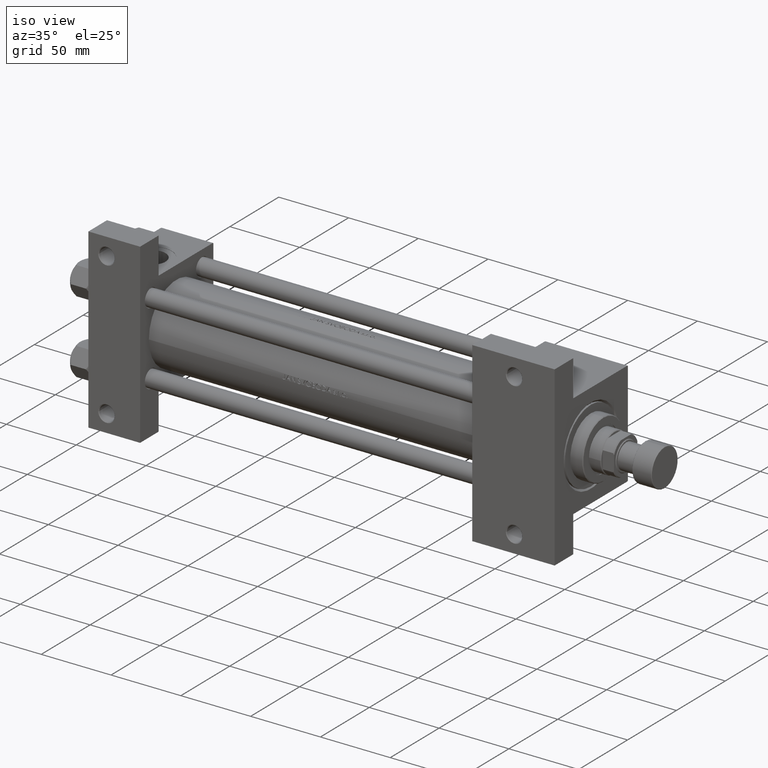
[diagram: clean part render]
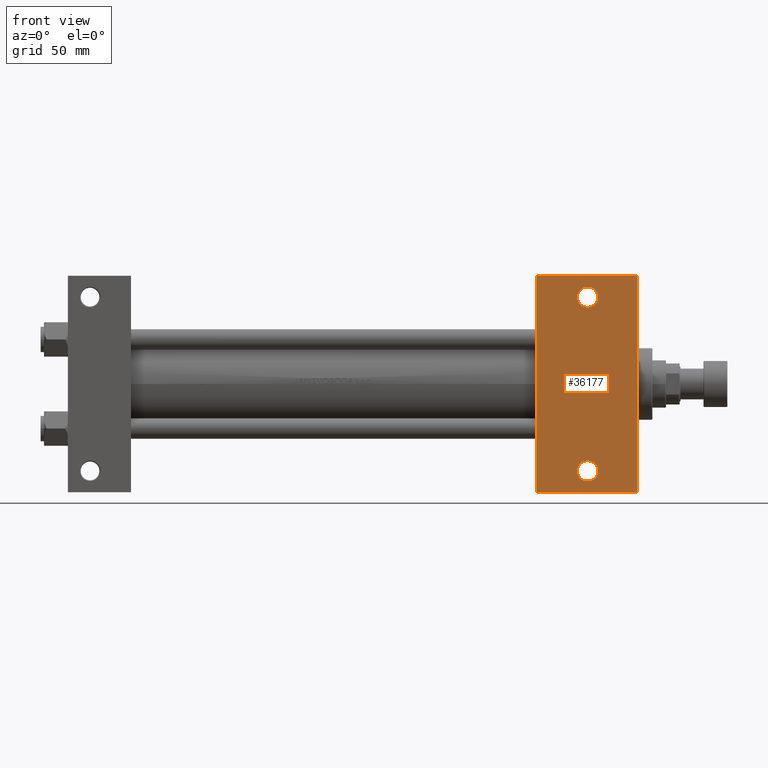
[diagram: tour spotlight — one face highlighted and labeled with its STEP entity id]
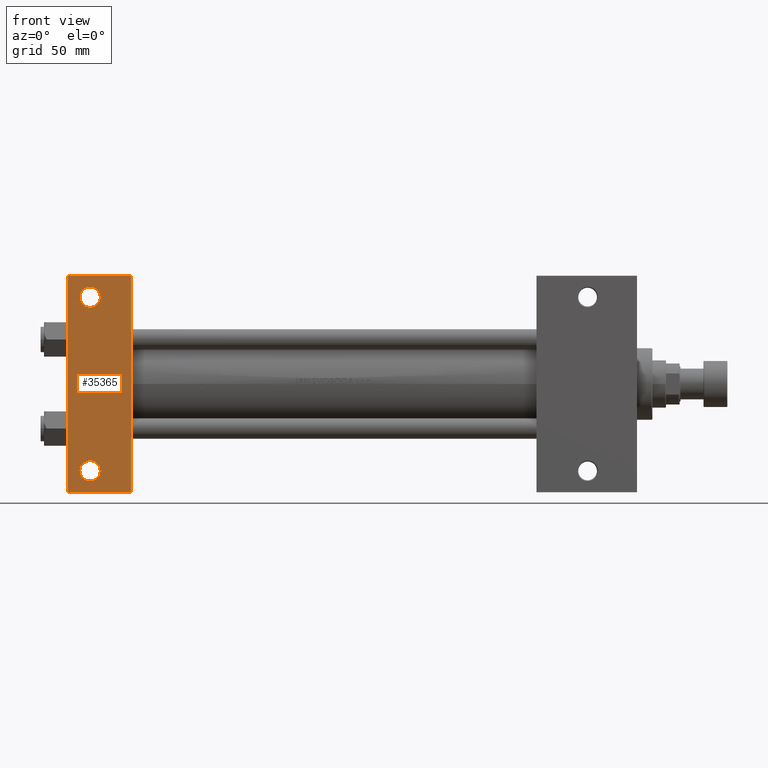
[diagram: tour spotlight — one face highlighted and labeled with its STEP entity id]
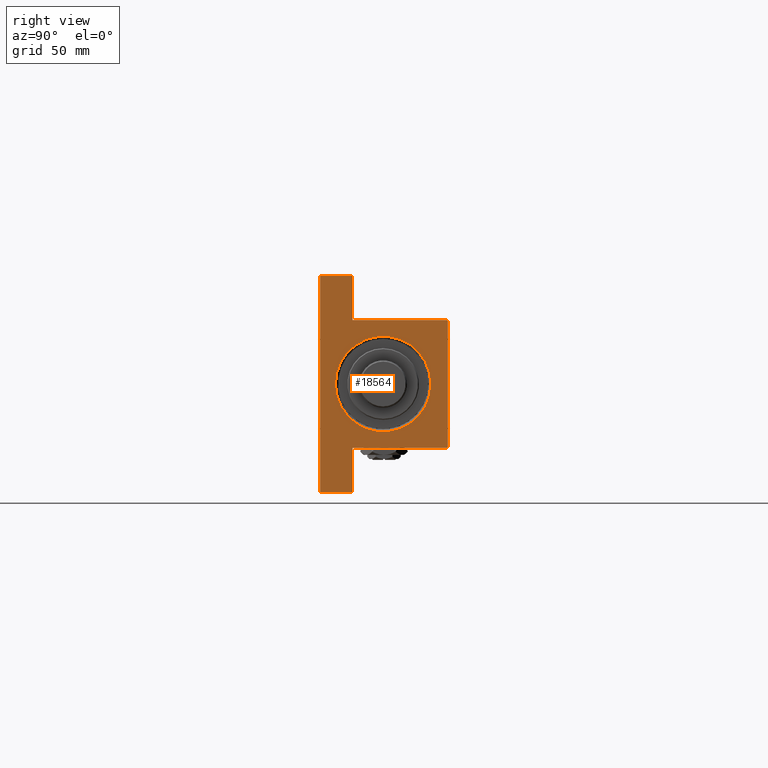
[diagram: tour spotlight — one face highlighted and labeled with its STEP entity id]
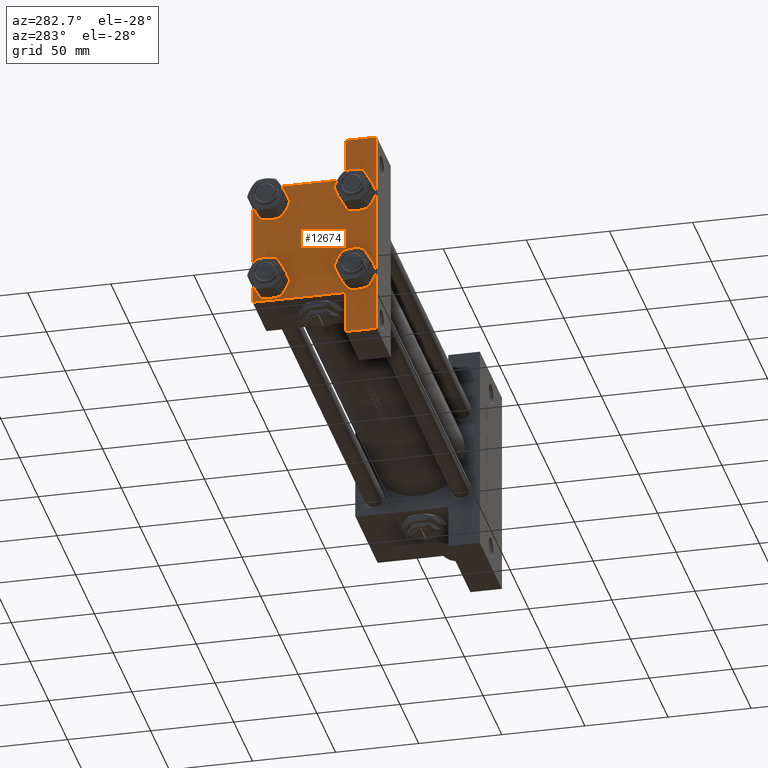
[diagram: tour spotlight — one face highlighted and labeled with its STEP entity id]
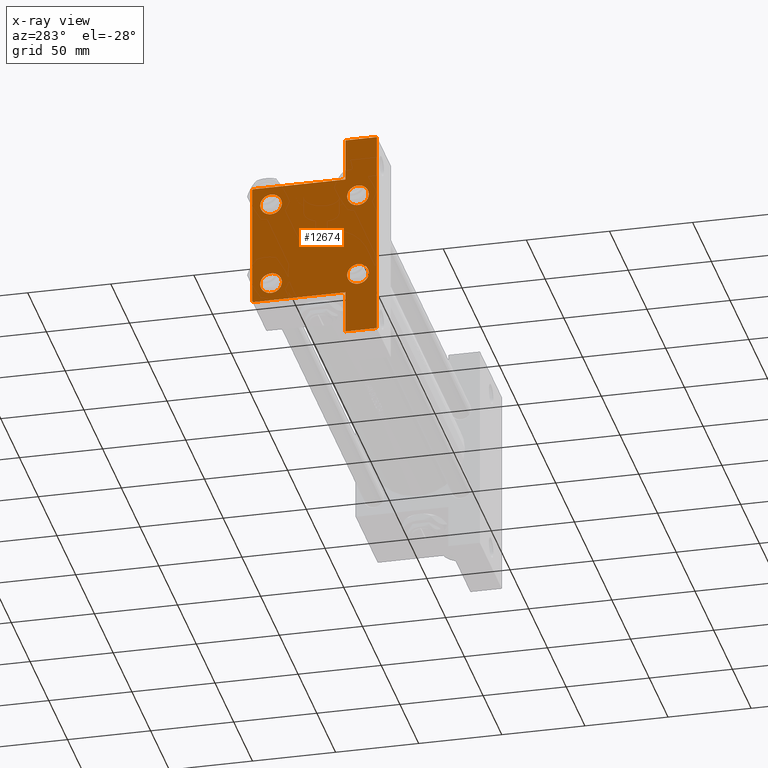
[diagram: x-ray of the same camera — body ghosted, this tour face saturated]
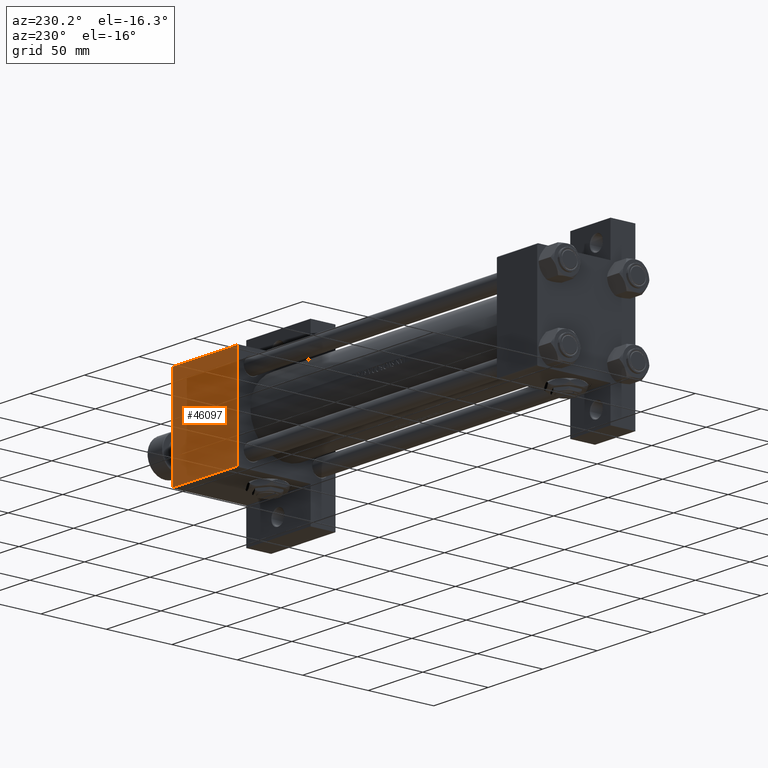
[diagram: tour spotlight — one face highlighted and labeled with its STEP entity id]
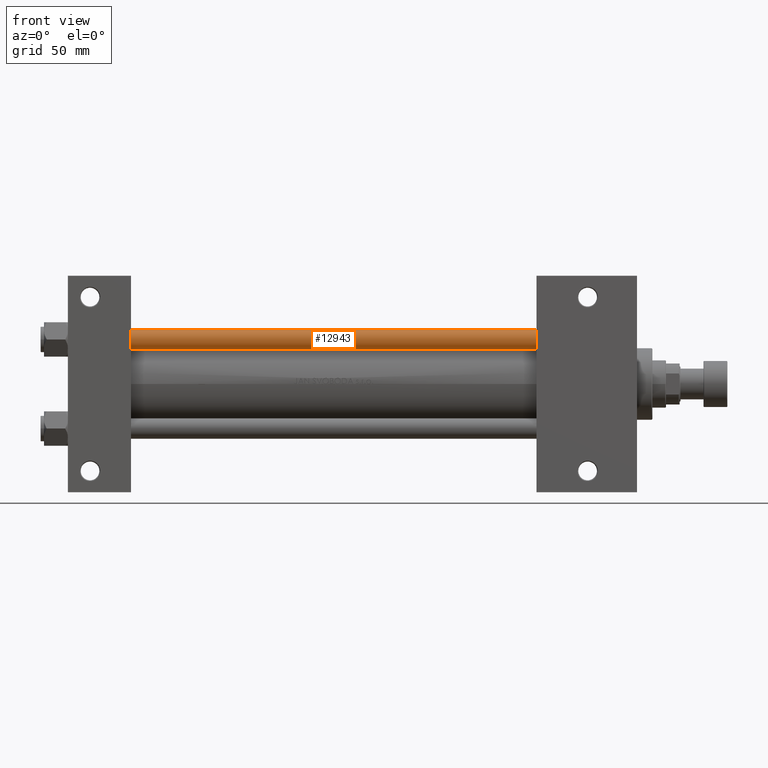
[diagram: tour spotlight — one face highlighted and labeled with its STEP entity id]
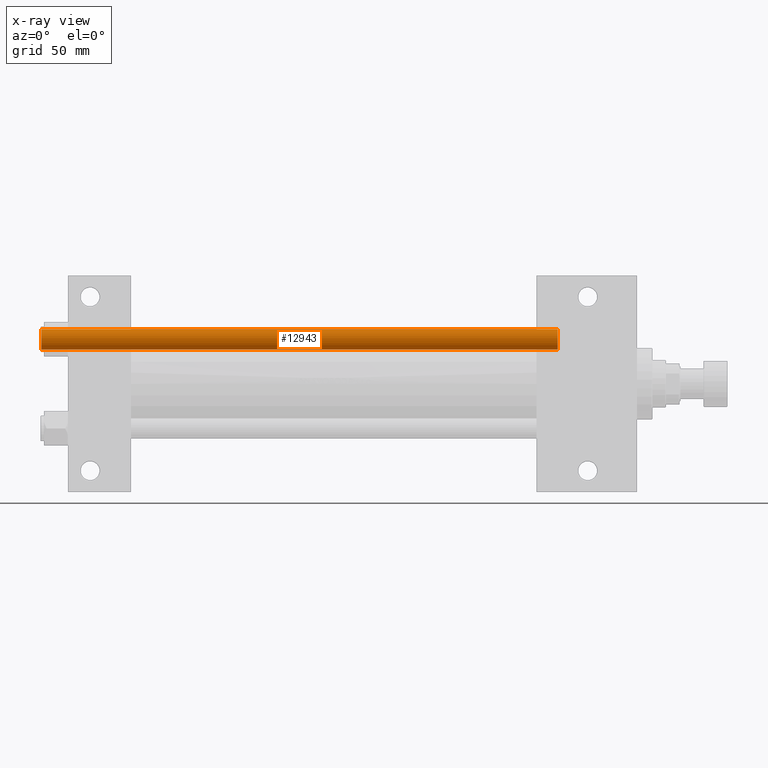
[diagram: x-ray of the same camera — body ghosted, this tour face saturated]
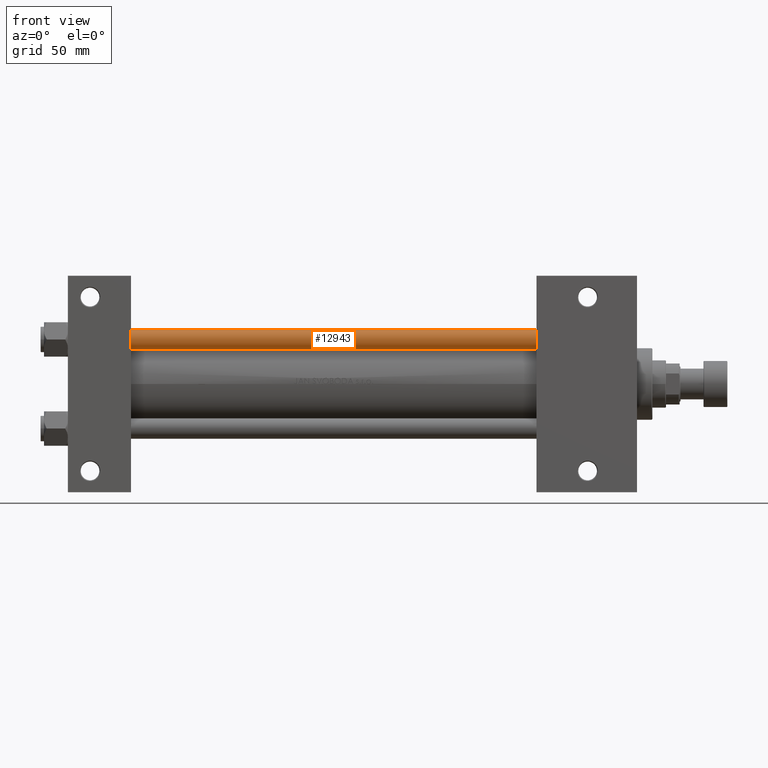
[diagram: tour spotlight — one face highlighted and labeled with its STEP entity id]
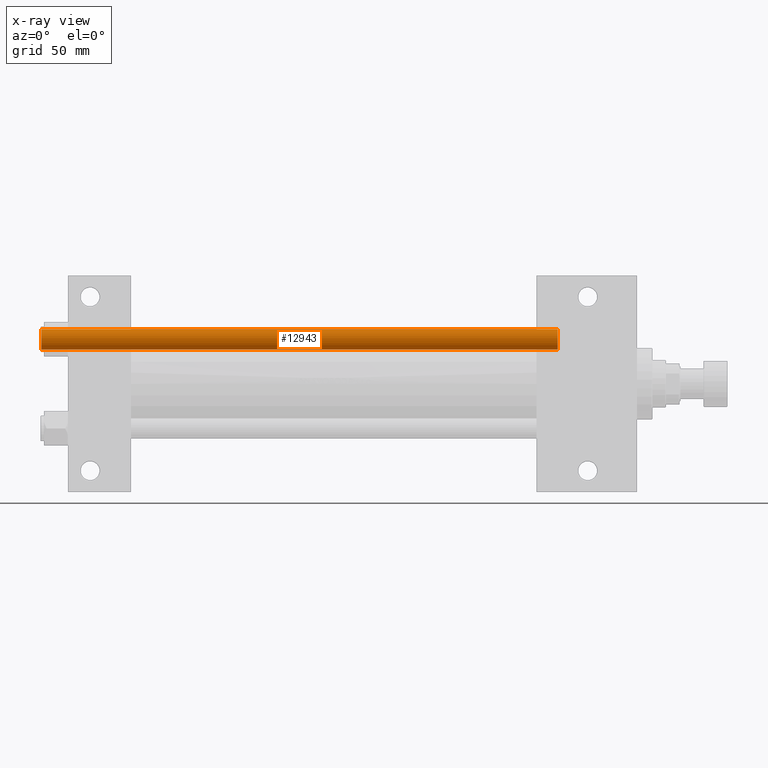
[diagram: x-ray of the same camera — body ghosted, this tour face saturated]
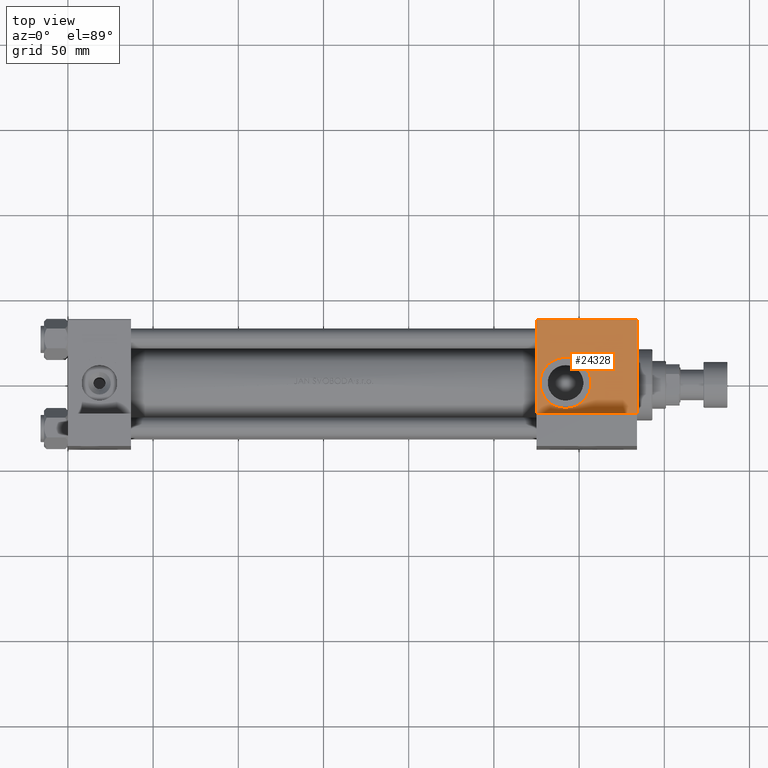
[diagram: tour spotlight — one face highlighted and labeled with its STEP entity id]
A machine part: a face-by-face anatomy tour. The part has 1197 B-rep faces; the first image is the clean iso view, then the 8 largest visible faces are spotlighted one at a time (largest first), each with its STEP entity span.

Face 1 — front view, entity #36177. In plain terms, the highlighted planar face has unit normal (0, -1, 0).
Definition (entity closure, byte-faithful):
#670 = CARTESIAN_POINT ( 'NONE',  ( 274.9999999999999432, 37.50000000000000000, -37.50000000000000000 ) ) ;
#691 = EDGE_CURVE ( 'NONE', #42571, #6692, #42683, .T. ) ;
#1751 = DIRECTION ( 'NONE',  ( -1.000000000000000000, 0.000000000000000000, 0.000000000000000000 ) ) ;
#2688 = EDGE_LOOP ( 'NONE', ( #12693, #31469, #23278, #48352 ) ) ;
#5316 = AXIS2_PLACEMENT_3D ( 'NONE', #49743, #15086, #23698 ) ;
#6692 = VERTEX_POINT ( 'NONE', #42587 ) ;
#7310 = EDGE_LOOP ( 'NONE', ( #9851, #15770 ) ) ;
#8898 = CARTESIAN_POINT ( 'NONE',  ( 274.9999999999999432, 63.49999999999997158, -37.50000000000000000 ) ) ;
#9370 = CIRCLE ( 'NONE', #36055, 5.999500000000046462 ) ;
#9448 = VERTEX_POINT ( 'NONE', #36521 ) ;
#9601 = PLANE ( 'NONE',  #21250 ) ;
#9733 = VERTEX_POINT ( 'NONE', #30938 ) ;
#9851 = ORIENTED_EDGE ( 'NONE', *, *, #12911, .T. ) ;
#10835 = CARTESIAN_POINT ( 'NONE',  ( 310.9995000000000118, 51.00000000000000711, -37.50000000000000000 ) ) ;
#12693 = ORIENTED_EDGE ( 'NONE', *, *, #17866, .F. ) ;
#12911 = EDGE_CURVE ( 'NONE', #29142, #9733, #33589, .T. ) ;
#13100 = CIRCLE ( 'NONE', #41380, 5.999500000000046462 ) ;
#13875 = CARTESIAN_POINT ( 'NONE',  ( 305.0000000000000000, -51.00000000000000000, -37.50000000000000000 ) ) ;
#15086 = DIRECTION ( 'NONE',  ( -0.000000000000000000, -0.000000000000000000, 1.000000000000000000 ) ) ;
#15115 = CARTESIAN_POINT ( 'NONE',  ( 333.9999999999999432, 37.50000000000000000, -37.50000000000000000 ) ) ;
#15770 = ORIENTED_EDGE ( 'NONE', *, *, #40230, .T. ) ;
#16110 = DIRECTION ( 'NONE',  ( 0.000000000000000000, -1.000000000000000000, 0.000000000000000000 ) ) ;
#16860 = VECTOR ( 'NONE', #16110, 1000.000000000000000 ) ;
#17214 = DIRECTION ( 'NONE',  ( 0.000000000000000000, 0.000000000000000000, -1.000000000000000000 ) ) ;
#17738 = ORIENTED_EDGE ( 'NONE', *, *, #38171, .T. ) ;
#17866 = EDGE_CURVE ( 'NONE', #9448, #46558, #39130, .T. ) ;
#17954 = FACE_BOUND ( 'NONE', #28041, .T. ) ;
#21250 = AXIS2_PLACEMENT_3D ( 'NONE', #25070, #17214, #48314 ) ;
#22353 = DIRECTION ( 'NONE',  ( -1.000000000000000000, 0.000000000000000000, 0.000000000000000000 ) ) ;
#23278 = ORIENTED_EDGE ( 'NONE', *, *, #691, .T. ) ;
#23698 = DIRECTION ( 'NONE',  ( -1.000000000000000000, 0.000000000000000000, 0.000000000000000000 ) ) ;
#25070 = CARTESIAN_POINT ( 'NONE',  ( 333.9999999999999432, 37.50000000000000000, -37.50000000000000000 ) ) ;
#25484 = DIRECTION ( 'NONE',  ( -0.000000000000000000, -0.000000000000000000, 1.000000000000000000 ) ) ;
#25575 = CARTESIAN_POINT ( 'NONE',  ( 299.0004999999998745, 51.00000000000000711, -37.50000000000000000 ) ) ;
#28007 = DIRECTION ( 'NONE',  ( -1.000000000000000000, -0.000000000000000000, -0.000000000000000000 ) ) ;
#28041 = EDGE_LOOP ( 'NONE', ( #17738, #34699 ) ) ;
#29142 = VERTEX_POINT ( 'NONE', #49316 ) ;
#29336 = DIRECTION ( 'NONE',  ( -0.000000000000000000, -0.000000000000000000, 1.000000000000000000 ) ) ;
#30938 = CARTESIAN_POINT ( 'NONE',  ( 310.9995000000000118, -51.00000000000000000, -37.50000000000000000 ) ) ;
#31335 = EDGE_CURVE ( 'NONE', #37944, #46469, #13100, .T. ) ;
#31469 = ORIENTED_EDGE ( 'NONE', *, *, #43875, .T. ) ;
#32527 = CARTESIAN_POINT ( 'NONE',  ( 274.9999999999999432, -63.50000000000002842, -37.50000000000000000 ) ) ;
#32655 = AXIS2_PLACEMENT_3D ( 'NONE', #49939, #25484, #41156 ) ;
#33589 = CIRCLE ( 'NONE', #5316, 5.999500000000046462 ) ;
#34699 = ORIENTED_EDGE ( 'NONE', *, *, #31335, .T. ) ;
#35530 = EDGE_CURVE ( 'NONE', #6692, #46558, #47198, .T. ) ;
#36055 = AXIS2_PLACEMENT_3D ( 'NONE', #13875, #29336, #1751 ) ;
#36177 = ADVANCED_FACE ( 'NONE', ( #17954, #44527, #48801 ), #9601, .T. ) ;
#36521 = CARTESIAN_POINT ( 'NONE',  ( 274.9999999999999432, 63.49999999999997158, -37.50000000000000000 ) ) ;
#37944 = VERTEX_POINT ( 'NONE', #10835 ) ;
#38168 = VECTOR ( 'NONE', #46470, 1000.000000000000000 ) ;
#38171 = EDGE_CURVE ( 'NONE', #46469, #37944, #44736, .T. ) ;
#39130 = LINE ( 'NONE', #670, #16860 ) ;
#39534 = LINE ( 'NONE', #8898, #44236 ) ;
#40230 = EDGE_CURVE ( 'NONE', #9733, #29142, #9370, .T. ) ;
#41156 = DIRECTION ( 'NONE',  ( -1.000000000000000000, 0.000000000000000000, 0.000000000000000000 ) ) ;
#41380 = AXIS2_PLACEMENT_3D ( 'NONE', #45371, #45621, #22353 ) ;
#42571 = VERTEX_POINT ( 'NONE', #47663 ) ;
#42587 = CARTESIAN_POINT ( 'NONE',  ( 333.9999999999999432, -63.50000000000002842, -37.50000000000000000 ) ) ;
#42683 = LINE ( 'NONE', #15115, #38168 ) ;
#43018 = VECTOR ( 'NONE', #28007, 1000.000000000000000 ) ;
#43875 = EDGE_CURVE ( 'NONE', #9448, #42571, #39534, .T. ) ;
#44236 = VECTOR ( 'NONE', #47112, 1000.000000000000000 ) ;
#44527 = FACE_BOUND ( 'NONE', #7310, .T. ) ;
#44736 = CIRCLE ( 'NONE', #32655, 5.999500000000046462 ) ;
#45371 = CARTESIAN_POINT ( 'NONE',  ( 304.9999999999999432, 51.00000000000000711, -37.50000000000000000 ) ) ;
#45621 = DIRECTION ( 'NONE',  ( -0.000000000000000000, -0.000000000000000000, 1.000000000000000000 ) ) ;
#46469 = VERTEX_POINT ( 'NONE', #25575 ) ;
#46470 = DIRECTION ( 'NONE',  ( 0.000000000000000000, -1.000000000000000000, 0.000000000000000000 ) ) ;
#46558 = VERTEX_POINT ( 'NONE', #47596 ) ;
#47112 = DIRECTION ( 'NONE',  ( 1.000000000000000000, 0.000000000000000000, 0.000000000000000000 ) ) ;
#47198 = LINE ( 'NONE', #32527, #43018 ) ;
#47596 = CARTESIAN_POINT ( 'NONE',  ( 274.9999999999999432, -63.50000000000002842, -37.50000000000000000 ) ) ;
#47663 = CARTESIAN_POINT ( 'NONE',  ( 333.9999999999999432, 63.49999999999997158, -37.50000000000000000 ) ) ;
#48314 = DIRECTION ( 'NONE',  ( -1.000000000000000000, 0.000000000000000000, -0.000000000000000000 ) ) ;
#48352 = ORIENTED_EDGE ( 'NONE', *, *, #35530, .T. ) ;
#48801 = FACE_OUTER_BOUND ( 'NONE', #2688, .T. ) ;
#49316 = CARTESIAN_POINT ( 'NONE',  ( 299.0004999999999313, -51.00000000000000000, -37.50000000000000000 ) ) ;
#49743 = CARTESIAN_POINT ( 'NONE',  ( 305.0000000000000000, -51.00000000000000000, -37.50000000000000000 ) ) ;
#49939 = CARTESIAN_POINT ( 'NONE',  ( 304.9999999999999432, 51.00000000000000711, -37.50000000000000000 ) ) ;

Face 2 — front view, entity #35365. In plain terms, the highlighted planar face has unit normal (0, -1, -0).
Definition (entity closure, byte-faithful):
#679 = CARTESIAN_POINT ( 'NONE',  ( 12.99999999999999822, -51.00000000000003553, -37.50000000000000711 ) ) ;
#929 = EDGE_CURVE ( 'NONE', #26586, #8829, #39024, .T. ) ;
#954 = DIRECTION ( 'NONE',  ( 1.000000000000000000, 0.000000000000000000, 0.000000000000000000 ) ) ;
#1362 = VERTEX_POINT ( 'NONE', #31124 ) ;
#1421 = AXIS2_PLACEMENT_3D ( 'NONE', #1849, #5389, #16795 ) ;
#1849 = CARTESIAN_POINT ( 'NONE',  ( 12.99999999999999822, 50.99999999999995737, -37.50000000000000000 ) ) ;
#1883 = DIRECTION ( 'NONE',  ( -0.000000000000000000, -9.251858538542972814E-17, 1.000000000000000000 ) ) ;
#2256 = DIRECTION ( 'NONE',  ( 0.000000000000000000, 1.000000000000000000, 9.251858538542972814E-17 ) ) ;
#2535 = DIRECTION ( 'NONE',  ( 0.000000000000000000, 1.000000000000000000, 0.000000000000000000 ) ) ;
#3489 = EDGE_CURVE ( 'NONE', #1362, #38982, #8527, .T. ) ;
#4017 = EDGE_CURVE ( 'NONE', #19695, #19867, #43936, .T. ) ;
#4135 = EDGE_CURVE ( 'NONE', #38982, #6154, #45130, .T. ) ;
#5389 = DIRECTION ( 'NONE',  ( -0.000000000000000000, -9.251858538542972814E-17, 1.000000000000000000 ) ) ;
#6154 = VERTEX_POINT ( 'NONE', #27796 ) ;
#6375 = CARTESIAN_POINT ( 'NONE',  ( 7.000500000000006828, 50.99999999999995737, -37.50000000000000000 ) ) ;
#6879 = DIRECTION ( 'NONE',  ( 0.000000000000000000, 1.000000000000000000, 0.000000000000000000 ) ) ;
#7173 = CARTESIAN_POINT ( 'NONE',  ( 37.00000000000000000, 37.49999999999999289, -37.50000000000000000 ) ) ;
#8527 = LINE ( 'NONE', #43201, #26180 ) ;
#8829 = VERTEX_POINT ( 'NONE', #25290 ) ;
#9215 = DIRECTION ( 'NONE',  ( 0.000000000000000000, -1.000000000000000000, -9.251858538542972814E-17 ) ) ;
#10269 = VECTOR ( 'NONE', #15076, 1000.000000000000000 ) ;
#10796 = ORIENTED_EDGE ( 'NONE', *, *, #15826, .T. ) ;
#10888 = ORIENTED_EDGE ( 'NONE', *, *, #43601, .T. ) ;
#11391 = EDGE_LOOP ( 'NONE', ( #26405, #40780 ) ) ;
#11600 = CARTESIAN_POINT ( 'NONE',  ( 37.00000000000001421, 63.50000000000000000, -37.50000000000002132 ) ) ;
#12274 = LINE ( 'NONE', #36318, #35765 ) ;
#12985 = AXIS2_PLACEMENT_3D ( 'NONE', #13679, #29139, #2535 ) ;
#13644 = PLANE ( 'NONE',  #34138 ) ;
#13679 = CARTESIAN_POINT ( 'NONE',  ( 12.99999999999999822, -51.00000000000003553, -37.50000000000000711 ) ) ;
#13933 = ORIENTED_EDGE ( 'NONE', *, *, #4135, .T. ) ;
#15076 = DIRECTION ( 'NONE',  ( -1.000000000000000000, -0.000000000000000000, -0.000000000000000000 ) ) ;
#15212 = EDGE_LOOP ( 'NONE', ( #35233, #29140, #13933, #10888 ) ) ;
#15826 = EDGE_CURVE ( 'NONE', #19867, #19695, #45033, .T. ) ;
#16795 = DIRECTION ( 'NONE',  ( 0.000000000000000000, 1.000000000000000000, 0.000000000000000000 ) ) ;
#17216 = AXIS2_PLACEMENT_3D ( 'NONE', #679, #31553, #6879 ) ;
#17450 = FACE_OUTER_BOUND ( 'NONE', #15212, .T. ) ;
#17662 = CARTESIAN_POINT ( 'NONE',  ( 18.99949999999998695, 50.99999999999995737, -37.50000000000000000 ) ) ;
#19695 = VERTEX_POINT ( 'NONE', #17662 ) ;
#19867 = VERTEX_POINT ( 'NONE', #6375 ) ;
#20391 = CARTESIAN_POINT ( 'NONE',  ( 12.99999999999999822, 50.99999999999995737, -37.50000000000000000 ) ) ;
#20737 = CARTESIAN_POINT ( 'NONE',  ( 18.99949999999998695, -51.00000000000003553, -37.50000000000000711 ) ) ;
#21510 = CARTESIAN_POINT ( 'NONE',  ( 3.977209754999747208E-16, -63.50000000000000000, -37.49999999999999289 ) ) ;
#22119 = DIRECTION ( 'NONE',  ( 0.000000000000000000, -1.000000000000000000, -9.251858538542972814E-17 ) ) ;
#22138 = AXIS2_PLACEMENT_3D ( 'NONE', #20391, #1883, #32270 ) ;
#24592 = VECTOR ( 'NONE', #22119, 1000.000000000000000 ) ;
#24806 = CARTESIAN_POINT ( 'NONE',  ( 37.00000000000000000, 37.49999999999999289, -37.50000000000000000 ) ) ;
#25290 = CARTESIAN_POINT ( 'NONE',  ( 7.000500000000006828, -51.00000000000003553, -37.50000000000000711 ) ) ;
#25301 = FACE_BOUND ( 'NONE', #11391, .T. ) ;
#26180 = VECTOR ( 'NONE', #954, 1000.000000000000000 ) ;
#26405 = ORIENTED_EDGE ( 'NONE', *, *, #27444, .T. ) ;
#26586 = VERTEX_POINT ( 'NONE', #20737 ) ;
#27113 = EDGE_LOOP ( 'NONE', ( #10796, #32856 ) ) ;
#27444 = EDGE_CURVE ( 'NONE', #8829, #26586, #47746, .T. ) ;
#27796 = CARTESIAN_POINT ( 'NONE',  ( 37.00000000000000000, -63.50000000000000000, -37.49999999999999289 ) ) ;
#29139 = DIRECTION ( 'NONE',  ( -0.000000000000000000, -9.251858538542972814E-17, 1.000000000000000000 ) ) ;
#29140 = ORIENTED_EDGE ( 'NONE', *, *, #3489, .T. ) ;
#31124 = CARTESIAN_POINT ( 'NONE',  ( 1.595073532467135441E-14, 63.50000000000000000, -37.50000000000002132 ) ) ;
#31553 = DIRECTION ( 'NONE',  ( -0.000000000000000000, -9.251858538542972814E-17, 1.000000000000000000 ) ) ;
#32270 = DIRECTION ( 'NONE',  ( 0.000000000000000000, 1.000000000000000000, 0.000000000000000000 ) ) ;
#32856 = ORIENTED_EDGE ( 'NONE', *, *, #4017, .T. ) ;
#34138 = AXIS2_PLACEMENT_3D ( 'NONE', #24806, #44517, #2256 ) ;
#34842 = EDGE_CURVE ( 'NONE', #1362, #38667, #12274, .T. ) ;
#35233 = ORIENTED_EDGE ( 'NONE', *, *, #34842, .F. ) ;
#35365 = ADVANCED_FACE ( 'NONE', ( #40477, #25301, #17450 ), #13644, .T. ) ;
#35765 = VECTOR ( 'NONE', #9215, 1000.000000000000000 ) ;
#36318 = CARTESIAN_POINT ( 'NONE',  ( 0.000000000000000000, 37.49999999999999289, -37.50000000000000000 ) ) ;
#38354 = LINE ( 'NONE', #49733, #10269 ) ;
#38667 = VERTEX_POINT ( 'NONE', #21510 ) ;
#38982 = VERTEX_POINT ( 'NONE', #11600 ) ;
#39024 = CIRCLE ( 'NONE', #17216, 5.999499999999990507 ) ;
#40477 = FACE_BOUND ( 'NONE', #27113, .T. ) ;
#40780 = ORIENTED_EDGE ( 'NONE', *, *, #929, .T. ) ;
#43201 = CARTESIAN_POINT ( 'NONE',  ( 1.595073532467135441E-14, 63.50000000000000000, -37.50000000000002132 ) ) ;
#43601 = EDGE_CURVE ( 'NONE', #6154, #38667, #38354, .T. ) ;
#43936 = CIRCLE ( 'NONE', #22138, 5.999499999999990507 ) ;
#44517 = DIRECTION ( 'NONE',  ( 0.000000000000000000, 9.251858538542972814E-17, -1.000000000000000000 ) ) ;
#45033 = CIRCLE ( 'NONE', #1421, 5.999499999999990507 ) ;
#45130 = LINE ( 'NONE', #7173, #24592 ) ;
#47746 = CIRCLE ( 'NONE', #12985, 5.999499999999990507 ) ;
#49733 = CARTESIAN_POINT ( 'NONE',  ( 3.977209754999747208E-16, -63.50000000000000000, -37.49999999999999289 ) ) ;

Face 3 — right view, entity #18564. In plain terms, the highlighted planar face has unit normal (-1, 0, 0).
Definition (entity closure, byte-faithful):
#691 = EDGE_CURVE ( 'NONE', #42571, #6692, #42683, .T. ) ;
#1881 = CARTESIAN_POINT ( 'NONE',  ( 333.9999999999999432, 0.000000000000000000, -28.49999999999994316 ) ) ;
#3356 = ORIENTED_EDGE ( 'NONE', *, *, #14644, .T. ) ;
#4082 = LINE ( 'NONE', #30674, #43741 ) ;
#4111 = CARTESIAN_POINT ( 'NONE',  ( 333.9999999999999432, 37.50000000000000000, 37.49999999999999289 ) ) ;
#4737 = VERTEX_POINT ( 'NONE', #31532 ) ;
#6692 = VERTEX_POINT ( 'NONE', #42587 ) ;
#6922 = ORIENTED_EDGE ( 'NONE', *, *, #691, .F. ) ;
#7046 = EDGE_LOOP ( 'NONE', ( #21842, #17823, #41822, #9142, #37264, #34986, #13179, #6922, #10522, #49582 ) ) ;
#7059 = DIRECTION ( 'NONE',  ( 0.000000000000000000, 0.000000000000000000, 1.000000000000000000 ) ) ;
#9142 = ORIENTED_EDGE ( 'NONE', *, *, #29377, .T. ) ;
#9182 = EDGE_CURVE ( 'NONE', #32684, #17941, #9546, .T. ) ;
#9241 = EDGE_CURVE ( 'NONE', #37311, #24900, #36708, .T. ) ;
#9480 = CARTESIAN_POINT ( 'NONE',  ( 333.9999999999999432, -63.50000000000002842, -18.50000000000000000 ) ) ;
#9546 = LINE ( 'NONE', #21465, #14086 ) ;
#10037 = DIRECTION ( 'NONE',  ( -0.000000000000000000, -1.000000000000000000, -0.000000000000000000 ) ) ;
#10375 = VECTOR ( 'NONE', #30201, 1000.000000000000000 ) ;
#10522 = ORIENTED_EDGE ( 'NONE', *, *, #40122, .F. ) ;
#10787 = FACE_OUTER_BOUND ( 'NONE', #7046, .T. ) ;
#11197 = LINE ( 'NONE', #45114, #10375 ) ;
#11898 = CARTESIAN_POINT ( 'NONE',  ( 333.9999999999999432, -37.50000000000000711, -18.50000000000000355 ) ) ;
#13179 = ORIENTED_EDGE ( 'NONE', *, *, #28811, .T. ) ;
#13349 = DIRECTION ( 'NONE',  ( -1.000000000000000000, -0.000000000000000000, 0.000000000000000000 ) ) ;
#13542 = EDGE_LOOP ( 'NONE', ( #47137, #3356 ) ) ;
#14086 = VECTOR ( 'NONE', #10037, 1000.000000000000000 ) ;
#14644 = EDGE_CURVE ( 'NONE', #24900, #37311, #15914, .T. ) ;
#15115 = CARTESIAN_POINT ( 'NONE',  ( 333.9999999999999432, 37.50000000000000000, -37.50000000000000000 ) ) ;
#15226 = CARTESIAN_POINT ( 'NONE',  ( 333.9999999999999432, 37.50000000000000000, 36.99999999999993605 ) ) ;
#15508 = DIRECTION ( 'NONE',  ( 0.000000000000000000, 0.000000000000000000, -1.000000000000000000 ) ) ;
#15914 = CIRCLE ( 'NONE', #37715, 27.99999999999994316 ) ;
#16624 = VECTOR ( 'NONE', #24516, 1000.000000000000114 ) ;
#16993 = CARTESIAN_POINT ( 'NONE',  ( 333.9999999999999432, -36.99999999999994316, 37.49999999999997868 ) ) ;
#17823 = ORIENTED_EDGE ( 'NONE', *, *, #39036, .T. ) ;
#17941 = VERTEX_POINT ( 'NONE', #9480 ) ;
#18564 = ADVANCED_FACE ( 'NONE', ( #43791, #10787 ), #25496, .F. ) ;
#19262 = DIRECTION ( 'NONE',  ( 0.000000000000000000, 0.000000000000000000, -1.000000000000000000 ) ) ;
#19319 = LINE ( 'NONE', #4111, #28215 ) ;
#19506 = VERTEX_POINT ( 'NONE', #30875 ) ;
#20262 = CARTESIAN_POINT ( 'NONE',  ( 333.9999999999999432, 37.50000000000000000, 37.49999999999999289 ) ) ;
#20587 = AXIS2_PLACEMENT_3D ( 'NONE', #32357, #13349, #47767 ) ;
#20785 = VECTOR ( 'NONE', #32624, 1000.000000000000000 ) ;
#21465 = CARTESIAN_POINT ( 'NONE',  ( 333.9999999999999432, -63.50000000000002842, -18.50000000000000000 ) ) ;
#21701 = CARTESIAN_POINT ( 'NONE',  ( 333.9999999999999432, -37.50000000000000000, 36.99999999999992184 ) ) ;
#21842 = ORIENTED_EDGE ( 'NONE', *, *, #22483, .F. ) ;
#22338 = EDGE_CURVE ( 'NONE', #4737, #32684, #11197, .T. ) ;
#22454 = DIRECTION ( 'NONE',  ( 0.000000000000000000, 0.000000000000000000, 1.000000000000000000 ) ) ;
#22483 = EDGE_CURVE ( 'NONE', #28858, #19506, #19319, .T. ) ;
#24516 = DIRECTION ( 'NONE',  ( 0.000000000000000000, -0.7071067811865474617, 0.7071067811865474617 ) ) ;
#24900 = VERTEX_POINT ( 'NONE', #32691 ) ;
#25490 = EDGE_CURVE ( 'NONE', #27239, #19506, #28501, .T. ) ;
#25493 = LINE ( 'NONE', #21701, #28453 ) ;
#25496 = PLANE ( 'NONE',  #28951 ) ;
#27239 = VERTEX_POINT ( 'NONE', #33468 ) ;
#27609 = LINE ( 'NONE', #39720, #39303 ) ;
#28215 = VECTOR ( 'NONE', #15508, 1000.000000000000000 ) ;
#28453 = VECTOR ( 'NONE', #32836, 1000.000000000000114 ) ;
#28501 = LINE ( 'NONE', #48431, #42011 ) ;
#28811 = EDGE_CURVE ( 'NONE', #17941, #6692, #4082, .T. ) ;
#28858 = VERTEX_POINT ( 'NONE', #15226 ) ;
#28951 = AXIS2_PLACEMENT_3D ( 'NONE', #33575, #48999, #22454 ) ;
#29227 = DIRECTION ( 'NONE',  ( 0.000000000000000000, -1.000000000000000000, 0.000000000000000000 ) ) ;
#29377 = EDGE_CURVE ( 'NONE', #46508, #4737, #25493, .T. ) ;
#30111 = CARTESIAN_POINT ( 'NONE',  ( 333.9999999999999432, 0.000000000000000000, -0.5000000000000004441 ) ) ;
#30201 = DIRECTION ( 'NONE',  ( 0.000000000000000000, -9.251858538542972814E-17, -1.000000000000000000 ) ) ;
#30674 = CARTESIAN_POINT ( 'NONE',  ( 333.9999999999999432, -63.50000000000002842, -18.50000000000000000 ) ) ;
#30714 = CARTESIAN_POINT ( 'NONE',  ( 333.9999999999999432, 36.99999999999994316, 37.49999999999999289 ) ) ;
#30875 = CARTESIAN_POINT ( 'NONE',  ( 333.9999999999999432, 37.49999999999993605, -18.50000000000000000 ) ) ;
#31532 = CARTESIAN_POINT ( 'NONE',  ( 333.9999999999999432, -37.50000000000000000, 36.99999999999992184 ) ) ;
#32357 = CARTESIAN_POINT ( 'NONE',  ( 333.9999999999999432, 0.000000000000000000, -0.5000000000000004441 ) ) ;
#32624 = DIRECTION ( 'NONE',  ( 0.000000000000000000, -1.000000000000000000, -1.850371707708594316E-16 ) ) ;
#32684 = VERTEX_POINT ( 'NONE', #11898 ) ;
#32691 = CARTESIAN_POINT ( 'NONE',  ( 333.9999999999999432, 3.429011037612582176E-15, 27.49999999999993960 ) ) ;
#32836 = DIRECTION ( 'NONE',  ( -0.000000000000000000, -0.7071067811865474617, -0.7071067811865474617 ) ) ;
#32869 = LINE ( 'NONE', #20262, #20785 ) ;
#33468 = CARTESIAN_POINT ( 'NONE',  ( 333.9999999999999432, 63.49999999999997158, -18.50000000000000000 ) ) ;
#33575 = CARTESIAN_POINT ( 'NONE',  ( 333.9999999999999432, 0.000000000000000000, 0.000000000000000000 ) ) ;
#34247 = VERTEX_POINT ( 'NONE', #30714 ) ;
#34954 = DIRECTION ( 'NONE',  ( 0.000000000000000000, 0.000000000000000000, -1.000000000000000000 ) ) ;
#34986 = ORIENTED_EDGE ( 'NONE', *, *, #9182, .T. ) ;
#36708 = CIRCLE ( 'NONE', #20587, 27.99999999999994316 ) ;
#37264 = ORIENTED_EDGE ( 'NONE', *, *, #22338, .T. ) ;
#37311 = VERTEX_POINT ( 'NONE', #1881 ) ;
#37715 = AXIS2_PLACEMENT_3D ( 'NONE', #30111, #45529, #7059 ) ;
#38168 = VECTOR ( 'NONE', #46470, 1000.000000000000000 ) ;
#39036 = EDGE_CURVE ( 'NONE', #28858, #34247, #43726, .T. ) ;
#39303 = VECTOR ( 'NONE', #19262, 1000.000000000000000 ) ;
#39720 = CARTESIAN_POINT ( 'NONE',  ( 333.9999999999999432, 63.49999999999997158, -18.50000000000000000 ) ) ;
#40122 = EDGE_CURVE ( 'NONE', #27239, #42571, #27609, .T. ) ;
#40173 = CARTESIAN_POINT ( 'NONE',  ( 333.9999999999999432, 36.99999999999994316, 37.49999999999999289 ) ) ;
#41822 = ORIENTED_EDGE ( 'NONE', *, *, #42914, .T. ) ;
#42011 = VECTOR ( 'NONE', #29227, 1000.000000000000000 ) ;
#42571 = VERTEX_POINT ( 'NONE', #47663 ) ;
#42587 = CARTESIAN_POINT ( 'NONE',  ( 333.9999999999999432, -63.50000000000002842, -37.50000000000000000 ) ) ;
#42683 = LINE ( 'NONE', #15115, #38168 ) ;
#42914 = EDGE_CURVE ( 'NONE', #34247, #46508, #32869, .T. ) ;
#43726 = LINE ( 'NONE', #40173, #16624 ) ;
#43741 = VECTOR ( 'NONE', #34954, 1000.000000000000000 ) ;
#43791 = FACE_BOUND ( 'NONE', #13542, .T. ) ;
#45114 = CARTESIAN_POINT ( 'NONE',  ( 333.9999999999999432, -37.50000000000000000, 37.49999999999997868 ) ) ;
#45529 = DIRECTION ( 'NONE',  ( -1.000000000000000000, -0.000000000000000000, 0.000000000000000000 ) ) ;
#46470 = DIRECTION ( 'NONE',  ( 0.000000000000000000, -1.000000000000000000, 0.000000000000000000 ) ) ;
#46508 = VERTEX_POINT ( 'NONE', #16993 ) ;
#47137 = ORIENTED_EDGE ( 'NONE', *, *, #9241, .T. ) ;
#47663 = CARTESIAN_POINT ( 'NONE',  ( 333.9999999999999432, 63.49999999999997158, -37.50000000000000000 ) ) ;
#47767 = DIRECTION ( 'NONE',  ( 0.000000000000000000, 0.000000000000000000, 1.000000000000000000 ) ) ;
#48431 = CARTESIAN_POINT ( 'NONE',  ( 333.9999999999999432, 63.49999999999997158, -18.50000000000000000 ) ) ;
#48999 = DIRECTION ( 'NONE',  ( -1.000000000000000000, -0.000000000000000000, 0.000000000000000000 ) ) ;
#49582 = ORIENTED_EDGE ( 'NONE', *, *, #25490, .T. ) ;

Face 4 — auxiliary view, entity #12674. An x-ray twin of the same camera follows (body ghosted, this face saturated) — the face is partly hidden behind the body. In plain terms, the highlighted planar face has unit normal (-1, 0, -0).
Definition (entity closure, byte-faithful):
#176 = CARTESIAN_POINT ( 'NONE',  ( 0.000000000000000000, 26.14999999999999858, 19.64999999999998437 ) ) ;
#212 = CARTESIAN_POINT ( 'NONE',  ( 1.595073532467135757E-14, 63.50000000000001421, -18.50000000000000355 ) ) ;
#301 = AXIS2_PLACEMENT_3D ( 'NONE', #27298, #38913, #4248 ) ;
#360 = ORIENTED_EDGE ( 'NONE', *, *, #2400, .F. ) ;
#719 = VERTEX_POINT ( 'NONE', #176 ) ;
#774 = VERTEX_POINT ( 'NONE', #38642 ) ;
#862 = EDGE_CURVE ( 'NONE', #8142, #24036, #3721, .T. ) ;
#973 = EDGE_CURVE ( 'NONE', #774, #39535, #15604, .T. ) ;
#1194 = ORIENTED_EDGE ( 'NONE', *, *, #3511, .T. ) ;
#1201 = DIRECTION ( 'NONE',  ( 0.000000000000000000, 0.7071067811865474617, -0.7071067811865474617 ) ) ;
#1269 = VERTEX_POINT ( 'NONE', #40755 ) ;
#1307 = AXIS2_PLACEMENT_3D ( 'NONE', #33067, #22188, #21443 ) ;
#1362 = VERTEX_POINT ( 'NONE', #31124 ) ;
#1402 = DIRECTION ( 'NONE',  ( 1.000000000000000000, -0.000000000000000000, 0.000000000000000000 ) ) ;
#1996 = EDGE_CURVE ( 'NONE', #42165, #38667, #21663, .T. ) ;
#2029 = AXIS2_PLACEMENT_3D ( 'NONE', #33554, #44452, #14836 ) ;
#2277 = EDGE_CURVE ( 'NONE', #36537, #42766, #15253, .T. ) ;
#2348 = VERTEX_POINT ( 'NONE', #7899 ) ;
#2400 = EDGE_CURVE ( 'NONE', #49691, #42766, #22852, .T. ) ;
#2416 = DIRECTION ( 'NONE',  ( 0.000000000000000000, -1.734723475976806848E-16, -1.000000000000000000 ) ) ;
#3453 = EDGE_CURVE ( 'NONE', #719, #11386, #32639, .T. ) ;
#3511 = EDGE_CURVE ( 'NONE', #49691, #8142, #35870, .T. ) ;
#3598 = DIRECTION ( 'NONE',  ( 1.000000000000000000, -0.000000000000000000, 0.000000000000000000 ) ) ;
#3721 = LINE ( 'NONE', #30815, #49532 ) ;
#3815 = EDGE_LOOP ( 'NONE', ( #12156, #45226 ) ) ;
#4248 = DIRECTION ( 'NONE',  ( 0.000000000000000000, 0.000000000000000000, 1.000000000000000000 ) ) ;
#4502 = VERTEX_POINT ( 'NONE', #34880 ) ;
#4730 = VECTOR ( 'NONE', #38150, 1000.000000000000000 ) ;
#5192 = CARTESIAN_POINT ( 'NONE',  ( 0.000000000000000000, -26.14999999999999147, 26.15000000000000924 ) ) ;
#5347 = ORIENTED_EDGE ( 'NONE', *, *, #47969, .T. ) ;
#5902 = CIRCLE ( 'NONE', #6734, 6.500000000000015987 ) ;
#6258 = EDGE_CURVE ( 'NONE', #1269, #4502, #33522, .T. ) ;
#6723 = FACE_BOUND ( 'NONE', #3815, .T. ) ;
#6734 = AXIS2_PLACEMENT_3D ( 'NONE', #16750, #32191, #48090 ) ;
#7099 = CARTESIAN_POINT ( 'NONE',  ( 0.000000000000000000, 26.14999999999999858, 26.15000000000000213 ) ) ;
#7155 = CARTESIAN_POINT ( 'NONE',  ( -0.000000000000000000, -37.25000000000000000, 37.25000000000000000 ) ) ;
#7899 = CARTESIAN_POINT ( 'NONE',  ( 0.000000000000000000, -26.14999999999999147, 32.65000000000003411 ) ) ;
#8142 = VERTEX_POINT ( 'NONE', #26055 ) ;
#8296 = AXIS2_PLACEMENT_3D ( 'NONE', #13943, #18000, #37734 ) ;
#9215 = DIRECTION ( 'NONE',  ( 0.000000000000000000, -1.000000000000000000, -9.251858538542972814E-17 ) ) ;
#9571 = CARTESIAN_POINT ( 'NONE',  ( 0.000000000000000000, 37.49999999999999289, -18.49999999999999645 ) ) ;
#11386 = VERTEX_POINT ( 'NONE', #36604 ) ;
#11481 = DIRECTION ( 'NONE',  ( 1.000000000000000000, -0.000000000000000000, 0.000000000000000000 ) ) ;
#12057 = DIRECTION ( 'NONE',  ( 0.000000000000000000, 0.000000000000000000, -1.000000000000000000 ) ) ;
#12156 = ORIENTED_EDGE ( 'NONE', *, *, #6258, .T. ) ;
#12274 = LINE ( 'NONE', #36318, #35765 ) ;
#12674 = ADVANCED_FACE ( 'NONE', ( #48232, #41651, #6723, #32823, #37356 ), #25979, .T. ) ;
#12996 = LINE ( 'NONE', #20130, #35336 ) ;
#13182 = VECTOR ( 'NONE', #23360, 1000.000000000000000 ) ;
#13225 = VECTOR ( 'NONE', #1201, 1000.000000000000114 ) ;
#13943 = CARTESIAN_POINT ( 'NONE',  ( 0.000000000000000000, -26.14999999999999147, -26.15000000000000924 ) ) ;
#14494 = DIRECTION ( 'NONE',  ( -0.000000000000000000, 0.7071067811865474617, 0.7071067811865474617 ) ) ;
#14740 = CARTESIAN_POINT ( 'NONE',  ( 0.000000000000000000, -26.14999999999999147, -26.15000000000000924 ) ) ;
#14836 = DIRECTION ( 'NONE',  ( 0.000000000000000000, 0.000000000000000000, 1.000000000000000000 ) ) ;
#15253 = LINE ( 'NONE', #7155, #17241 ) ;
#15604 = CIRCLE ( 'NONE', #43069, 6.500000000000015987 ) ;
#15654 = DIRECTION ( 'NONE',  ( -2.877097866686192789E-16, -1.000000000000000000, 0.000000000000000000 ) ) ;
#16612 = EDGE_LOOP ( 'NONE', ( #33627, #30405, #360, #1194, #23762, #36921, #37057, #40808, #25966, #34817 ) ) ;
#16750 = CARTESIAN_POINT ( 'NONE',  ( 0.000000000000000000, 26.14999999999999858, -26.15000000000000213 ) ) ;
#16842 = DIRECTION ( 'NONE',  ( 0.000000000000000000, 0.000000000000000000, 1.000000000000000000 ) ) ;
#17049 = VECTOR ( 'NONE', #37342, 1000.000000000000000 ) ;
#17241 = VECTOR ( 'NONE', #14494, 1000.000000000000114 ) ;
#17621 = AXIS2_PLACEMENT_3D ( 'NONE', #20104, #11481, #46154 ) ;
#18000 = DIRECTION ( 'NONE',  ( 1.000000000000000000, -0.000000000000000000, 0.000000000000000000 ) ) ;
#18688 = EDGE_LOOP ( 'NONE', ( #48046, #5347 ) ) ;
#19760 = VERTEX_POINT ( 'NONE', #49774 ) ;
#20104 = CARTESIAN_POINT ( 'NONE',  ( 0.000000000000000000, -26.14999999999999147, 26.15000000000000924 ) ) ;
#20130 = CARTESIAN_POINT ( 'NONE',  ( 0.000000000000000000, -37.50000000000000711, 37.49999999999999289 ) ) ;
#20478 = VECTOR ( 'NONE', #2416, 1000.000000000000000 ) ;
#20621 = CARTESIAN_POINT ( 'NONE',  ( 0.000000000000000000, -26.14999999999999147, 19.64999999999999147 ) ) ;
#21443 = DIRECTION ( 'NONE',  ( -0.000000000000000000, 0.000000000000000000, 1.000000000000000000 ) ) ;
#21510 = CARTESIAN_POINT ( 'NONE',  ( 3.977209754999747208E-16, -63.50000000000000000, -37.49999999999999289 ) ) ;
#21641 = CIRCLE ( 'NONE', #17621, 6.500000000000023093 ) ;
#21663 = LINE ( 'NONE', #37092, #20478 ) ;
#22188 = DIRECTION ( 'NONE',  ( -1.000000000000000000, 0.000000000000000000, -0.000000000000000000 ) ) ;
#22235 = VERTEX_POINT ( 'NONE', #20621 ) ;
#22436 = AXIS2_PLACEMENT_3D ( 'NONE', #7099, #41260, #29891 ) ;
#22852 = LINE ( 'NONE', #26908, #13182 ) ;
#23303 = ORIENTED_EDGE ( 'NONE', *, *, #32570, .T. ) ;
#23360 = DIRECTION ( 'NONE',  ( 0.000000000000000000, -1.000000000000000000, -9.251858538542971581E-17 ) ) ;
#23480 = EDGE_LOOP ( 'NONE', ( #42027, #41262 ) ) ;
#23482 = CARTESIAN_POINT ( 'NONE',  ( 3.977209754999747208E-16, -63.50000000000000000, -18.50000000000000355 ) ) ;
#23762 = ORIENTED_EDGE ( 'NONE', *, *, #862, .T. ) ;
#24036 = VERTEX_POINT ( 'NONE', #9571 ) ;
#25966 = ORIENTED_EDGE ( 'NONE', *, *, #1996, .F. ) ;
#25979 = PLANE ( 'NONE',  #1307 ) ;
#26055 = CARTESIAN_POINT ( 'NONE',  ( 0.000000000000000000, 37.49999999999999289, 37.00000000000000000 ) ) ;
#26474 = CARTESIAN_POINT ( 'NONE',  ( 0.000000000000000000, -37.50000000000000711, 36.99999999999999289 ) ) ;
#26782 = CARTESIAN_POINT ( 'NONE',  ( 1.595073532467135441E-14, 63.50000000000001421, 26.72167621838005047 ) ) ;
#26908 = CARTESIAN_POINT ( 'NONE',  ( 0.000000000000000000, 37.49999999999999289, 37.50000000000000000 ) ) ;
#27052 = CARTESIAN_POINT ( 'NONE',  ( 0.000000000000000000, 37.24999999999999289, 37.24999999999999289 ) ) ;
#27298 = CARTESIAN_POINT ( 'NONE',  ( 0.000000000000000000, 26.14999999999999858, 26.15000000000000213 ) ) ;
#27855 = EDGE_CURVE ( 'NONE', #19760, #42165, #49223, .T. ) ;
#28471 = DIRECTION ( 'NONE',  ( 0.000000000000000000, 9.251858538542971581E-17, -1.000000000000000000 ) ) ;
#28520 = CARTESIAN_POINT ( 'NONE',  ( 0.000000000000000000, 36.99999999999999289, 37.50000000000000000 ) ) ;
#29567 = CARTESIAN_POINT ( 'NONE',  ( 0.000000000000000000, -26.14999999999999147, -19.64999999999999503 ) ) ;
#29823 = VERTEX_POINT ( 'NONE', #43350 ) ;
#29891 = DIRECTION ( 'NONE',  ( 0.000000000000000000, 0.000000000000000000, 1.000000000000000000 ) ) ;
#30405 = ORIENTED_EDGE ( 'NONE', *, *, #2277, .T. ) ;
#30815 = CARTESIAN_POINT ( 'NONE',  ( 0.000000000000000000, 37.49999999999999289, 37.50000000000000000 ) ) ;
#30933 = CIRCLE ( 'NONE', #8296, 6.500000000000015987 ) ;
#31124 = CARTESIAN_POINT ( 'NONE',  ( 1.595073532467135441E-14, 63.50000000000000000, -37.50000000000002132 ) ) ;
#32191 = DIRECTION ( 'NONE',  ( 1.000000000000000000, -0.000000000000000000, 0.000000000000000000 ) ) ;
#32570 = EDGE_CURVE ( 'NONE', #39535, #774, #30933, .T. ) ;
#32639 = CIRCLE ( 'NONE', #301, 6.500000000000023093 ) ;
#32823 = FACE_BOUND ( 'NONE', #23480, .T. ) ;
#33067 = CARTESIAN_POINT ( 'NONE',  ( 0.000000000000000000, 0.000000000000000000, 0.000000000000000000 ) ) ;
#33090 = EDGE_CURVE ( 'NONE', #29823, #24036, #46507, .T. ) ;
#33292 = CARTESIAN_POINT ( 'NONE',  ( 3.977209754999744250E-16, -63.49999999999998579, -18.50000000000000355 ) ) ;
#33522 = CIRCLE ( 'NONE', #2029, 6.500000000000015987 ) ;
#33554 = CARTESIAN_POINT ( 'NONE',  ( 0.000000000000000000, 26.14999999999999858, -26.15000000000000213 ) ) ;
#33627 = ORIENTED_EDGE ( 'NONE', *, *, #42577, .F. ) ;
#34817 = ORIENTED_EDGE ( 'NONE', *, *, #27855, .F. ) ;
#34842 = EDGE_CURVE ( 'NONE', #1362, #38667, #12274, .T. ) ;
#34880 = CARTESIAN_POINT ( 'NONE',  ( 0.000000000000000000, 26.14999999999999858, -32.65000000000001990 ) ) ;
#35336 = VECTOR ( 'NONE', #28471, 1000.000000000000000 ) ;
#35404 = CIRCLE ( 'NONE', #49101, 6.500000000000023093 ) ;
#35765 = VECTOR ( 'NONE', #9215, 1000.000000000000000 ) ;
#35870 = LINE ( 'NONE', #27052, #13225 ) ;
#36318 = CARTESIAN_POINT ( 'NONE',  ( 0.000000000000000000, 37.49999999999999289, -37.50000000000000000 ) ) ;
#36537 = VERTEX_POINT ( 'NONE', #26474 ) ;
#36604 = CARTESIAN_POINT ( 'NONE',  ( 0.000000000000000000, 26.14999999999999858, 32.65000000000002700 ) ) ;
#36919 = EDGE_CURVE ( 'NONE', #4502, #1269, #5902, .T. ) ;
#36921 = ORIENTED_EDGE ( 'NONE', *, *, #33090, .F. ) ;
#37057 = ORIENTED_EDGE ( 'NONE', *, *, #45601, .T. ) ;
#37092 = CARTESIAN_POINT ( 'NONE',  ( 3.977209754999747208E-16, -63.49999999999998579, 26.72167621838007889 ) ) ;
#37342 = DIRECTION ( 'NONE',  ( 4.278042683914906889E-17, -1.000000000000000000, 0.000000000000000000 ) ) ;
#37356 = FACE_OUTER_BOUND ( 'NONE', #16612, .T. ) ;
#37734 = DIRECTION ( 'NONE',  ( 0.000000000000000000, 0.000000000000000000, 1.000000000000000000 ) ) ;
#38150 = DIRECTION ( 'NONE',  ( 0.000000000000000000, -1.734723475976806848E-16, -1.000000000000000000 ) ) ;
#38642 = CARTESIAN_POINT ( 'NONE',  ( 0.000000000000000000, -26.14999999999999147, -32.65000000000002700 ) ) ;
#38667 = VERTEX_POINT ( 'NONE', #21510 ) ;
#38913 = DIRECTION ( 'NONE',  ( 1.000000000000000000, -0.000000000000000000, 0.000000000000000000 ) ) ;
#39211 = ORIENTED_EDGE ( 'NONE', *, *, #973, .T. ) ;
#39471 = CARTESIAN_POINT ( 'NONE',  ( 0.000000000000000000, -37.00000000000000711, 37.49999999999999289 ) ) ;
#39535 = VERTEX_POINT ( 'NONE', #29567 ) ;
#40755 = CARTESIAN_POINT ( 'NONE',  ( 0.000000000000000000, 26.14999999999999858, -19.64999999999998792 ) ) ;
#40808 = ORIENTED_EDGE ( 'NONE', *, *, #34842, .T. ) ;
#41260 = DIRECTION ( 'NONE',  ( 1.000000000000000000, -0.000000000000000000, 0.000000000000000000 ) ) ;
#41262 = ORIENTED_EDGE ( 'NONE', *, *, #3453, .T. ) ;
#41651 = FACE_BOUND ( 'NONE', #42537, .T. ) ;
#42027 = ORIENTED_EDGE ( 'NONE', *, *, #47355, .T. ) ;
#42165 = VERTEX_POINT ( 'NONE', #23482 ) ;
#42537 = EDGE_LOOP ( 'NONE', ( #23303, #39211 ) ) ;
#42577 = EDGE_CURVE ( 'NONE', #36537, #19760, #12996, .T. ) ;
#42766 = VERTEX_POINT ( 'NONE', #39471 ) ;
#43069 = AXIS2_PLACEMENT_3D ( 'NONE', #14740, #3598, #48201 ) ;
#43350 = CARTESIAN_POINT ( 'NONE',  ( 1.595073532467135441E-14, 63.50000000000000000, -18.50000000000000355 ) ) ;
#44233 = CIRCLE ( 'NONE', #22436, 6.500000000000023093 ) ;
#44452 = DIRECTION ( 'NONE',  ( 1.000000000000000000, -0.000000000000000000, 0.000000000000000000 ) ) ;
#44540 = EDGE_CURVE ( 'NONE', #2348, #22235, #35404, .T. ) ;
#45226 = ORIENTED_EDGE ( 'NONE', *, *, #36919, .T. ) ;
#45485 = LINE ( 'NONE', #26782, #4730 ) ;
#45601 = EDGE_CURVE ( 'NONE', #29823, #1362, #45485, .T. ) ;
#46154 = DIRECTION ( 'NONE',  ( 0.000000000000000000, 0.000000000000000000, 1.000000000000000000 ) ) ;
#46507 = LINE ( 'NONE', #212, #48586 ) ;
#47355 = EDGE_CURVE ( 'NONE', #11386, #719, #44233, .T. ) ;
#47969 = EDGE_CURVE ( 'NONE', #22235, #2348, #21641, .T. ) ;
#48046 = ORIENTED_EDGE ( 'NONE', *, *, #44540, .T. ) ;
#48090 = DIRECTION ( 'NONE',  ( 0.000000000000000000, 0.000000000000000000, 1.000000000000000000 ) ) ;
#48201 = DIRECTION ( 'NONE',  ( 0.000000000000000000, 0.000000000000000000, 1.000000000000000000 ) ) ;
#48232 = FACE_BOUND ( 'NONE', #18688, .T. ) ;
#48586 = VECTOR ( 'NONE', #15654, 1000.000000000000000 ) ;
#49101 = AXIS2_PLACEMENT_3D ( 'NONE', #5192, #1402, #16842 ) ;
#49223 = LINE ( 'NONE', #33292, #17049 ) ;
#49532 = VECTOR ( 'NONE', #12057, 1000.000000000000000 ) ;
#49691 = VERTEX_POINT ( 'NONE', #28520 ) ;
#49774 = CARTESIAN_POINT ( 'NONE',  ( -7.145701223179004046E-16, -37.50000000000000711, -18.50000000000000355 ) ) ;

Face 5 — auxiliary view, entity #46097. In plain terms, the highlighted planar face has unit normal (0, -1, -0).
Definition (entity closure, byte-faithful):
#1818 = LINE ( 'NONE', #47617, #15575 ) ;
#2318 = LINE ( 'NONE', #48364, #20853 ) ;
#10877 = VERTEX_POINT ( 'NONE', #33466 ) ;
#15575 = VECTOR ( 'NONE', #31950, 1000.000000000000000 ) ;
#16993 = CARTESIAN_POINT ( 'NONE',  ( 333.9999999999999432, -36.99999999999994316, 37.49999999999997868 ) ) ;
#17308 = ORIENTED_EDGE ( 'NONE', *, *, #42914, .F. ) ;
#17789 = FACE_OUTER_BOUND ( 'NONE', #35938, .T. ) ;
#20262 = CARTESIAN_POINT ( 'NONE',  ( 333.9999999999999432, 37.50000000000000000, 37.49999999999999289 ) ) ;
#20785 = VECTOR ( 'NONE', #32624, 1000.000000000000000 ) ;
#20853 = VECTOR ( 'NONE', #22310, 1000.000000000000000 ) ;
#21109 = DIRECTION ( 'NONE',  ( 0.000000000000000000, 1.850371707708594316E-16, -1.000000000000000000 ) ) ;
#22310 = DIRECTION ( 'NONE',  ( 1.000000000000000000, 0.000000000000000000, 0.000000000000000000 ) ) ;
#23424 = ORIENTED_EDGE ( 'NONE', *, *, #44905, .T. ) ;
#24143 = EDGE_CURVE ( 'NONE', #49427, #10877, #30083, .T. ) ;
#29438 = DIRECTION ( 'NONE',  ( 0.000000000000000000, 1.000000000000000000, 1.850371707708594316E-16 ) ) ;
#30083 = LINE ( 'NONE', #45251, #33089 ) ;
#30714 = CARTESIAN_POINT ( 'NONE',  ( 333.9999999999999432, 36.99999999999994316, 37.49999999999999289 ) ) ;
#31950 = DIRECTION ( 'NONE',  ( -1.000000000000000000, 0.000000000000000000, 0.000000000000000000 ) ) ;
#32504 = EDGE_CURVE ( 'NONE', #34247, #49427, #1818, .T. ) ;
#32624 = DIRECTION ( 'NONE',  ( 0.000000000000000000, -1.000000000000000000, -1.850371707708594316E-16 ) ) ;
#32869 = LINE ( 'NONE', #20262, #20785 ) ;
#33089 = VECTOR ( 'NONE', #49545, 1000.000000000000000 ) ;
#33466 = CARTESIAN_POINT ( 'NONE',  ( 274.9999999999999432, -36.99999999999994316, 37.49999999999997868 ) ) ;
#34247 = VERTEX_POINT ( 'NONE', #30714 ) ;
#35938 = EDGE_LOOP ( 'NONE', ( #17308, #40761, #46307, #23424 ) ) ;
#40324 = CARTESIAN_POINT ( 'NONE',  ( 333.9999999999999432, 37.50000000000000000, 37.49999999999999289 ) ) ;
#40761 = ORIENTED_EDGE ( 'NONE', *, *, #32504, .T. ) ;
#42914 = EDGE_CURVE ( 'NONE', #34247, #46508, #32869, .T. ) ;
#43232 = CARTESIAN_POINT ( 'NONE',  ( 274.9999999999999432, 36.99999999999994316, 37.49999999999999289 ) ) ;
#44113 = PLANE ( 'NONE',  #47559 ) ;
#44905 = EDGE_CURVE ( 'NONE', #10877, #46508, #2318, .T. ) ;
#45251 = CARTESIAN_POINT ( 'NONE',  ( 274.9999999999999432, 37.50000000000000000, 37.49999999999999289 ) ) ;
#46097 = ADVANCED_FACE ( 'NONE', ( #17789 ), #44113, .F. ) ;
#46307 = ORIENTED_EDGE ( 'NONE', *, *, #24143, .T. ) ;
#46508 = VERTEX_POINT ( 'NONE', #16993 ) ;
#47559 = AXIS2_PLACEMENT_3D ( 'NONE', #40324, #21109, #29438 ) ;
#47617 = CARTESIAN_POINT ( 'NONE',  ( 274.9999999999999432, 36.99999999999994316, 37.49999999999999289 ) ) ;
#48364 = CARTESIAN_POINT ( 'NONE',  ( 333.9999999999999432, -36.99999999999994316, 37.49999999999997868 ) ) ;
#49427 = VERTEX_POINT ( 'NONE', #43232 ) ;
#49545 = DIRECTION ( 'NONE',  ( 0.000000000000000000, -1.000000000000000000, -1.850371707708594316E-16 ) ) ;

Face 6 — front view, entity #12943. An x-ray twin of the same camera follows (body ghosted, this face saturated) — the face is partly hidden behind the body. In plain terms, the highlighted cylindrical surface (edge-blend (fillet) strip) has radius 6 mm, axis along (-1, 0, 0).
Definition (entity closure, byte-faithful):
#2142 = CIRCLE ( 'NONE', #25576, 6.000000000000000888 ) ;
#4173 = VERTEX_POINT ( 'NONE', #19332 ) ;
#5443 = DIRECTION ( 'NONE',  ( 1.000000000000000000, 0.000000000000000000, 0.000000000000000000 ) ) ;
#8433 = CARTESIAN_POINT ( 'NONE',  ( -6.000000000000000888, 0.000000000000000000, 304.0000000000000000 ) ) ;
#9984 = CARTESIAN_POINT ( 'NONE',  ( 6.000000000000000888, 7.347880794884120722E-16, 303.5000000000000000 ) ) ;
#11012 = CARTESIAN_POINT ( 'NONE',  ( 6.000000000000000888, 7.347880794884120722E-16, 0.4999999999999449329 ) ) ;
#11783 = AXIS2_PLACEMENT_3D ( 'NONE', #18641, #46446, #31280 ) ;
#12041 = VERTEX_POINT ( 'NONE', #31762 ) ;
#12943 = ADVANCED_FACE ( 'NONE', ( #15834 ), #38612, .T. ) ;
#13911 = EDGE_CURVE ( 'NONE', #12041, #16441, #2142, .T. ) ;
#15107 = VECTOR ( 'NONE', #26827, 1000.000000000000000 ) ;
#15152 = EDGE_CURVE ( 'NONE', #16441, #23066, #34902, .T. ) ;
#15762 = EDGE_CURVE ( 'NONE', #12041, #4173, #31239, .T. ) ;
#15834 = FACE_OUTER_BOUND ( 'NONE', #24185, .T. ) ;
#16441 = VERTEX_POINT ( 'NONE', #9984 ) ;
#16759 = DIRECTION ( 'NONE',  ( -0.000000000000000000, -0.000000000000000000, 1.000000000000000000 ) ) ;
#16763 = AXIS2_PLACEMENT_3D ( 'NONE', #28175, #16759, #32200 ) ;
#18641 = CARTESIAN_POINT ( 'NONE',  ( 0.000000000000000000, 0.000000000000000000, 304.0000000000000000 ) ) ;
#19332 = CARTESIAN_POINT ( 'NONE',  ( -6.000000000000000888, 0.000000000000000000, 0.4999999999999449329 ) ) ;
#22773 = CARTESIAN_POINT ( 'NONE',  ( 6.000000000000000888, 7.347880794884120722E-16, 304.0000000000000000 ) ) ;
#23066 = VERTEX_POINT ( 'NONE', #11012 ) ;
#24185 = EDGE_LOOP ( 'NONE', ( #38413, #44857, #35904, #49997 ) ) ;
#24698 = CARTESIAN_POINT ( 'NONE',  ( 0.000000000000000000, 0.000000000000000000, 303.5000000000000000 ) ) ;
#25576 = AXIS2_PLACEMENT_3D ( 'NONE', #24698, #47945, #5443 ) ;
#26827 = DIRECTION ( 'NONE',  ( -0.000000000000000000, -0.000000000000000000, -1.000000000000000000 ) ) ;
#28175 = CARTESIAN_POINT ( 'NONE',  ( 0.000000000000000000, 0.000000000000000000, 0.4999999999999449329 ) ) ;
#31239 = LINE ( 'NONE', #8433, #49075 ) ;
#31280 = DIRECTION ( 'NONE',  ( -1.000000000000000000, 0.000000000000000000, 0.000000000000000000 ) ) ;
#31732 = DIRECTION ( 'NONE',  ( -0.000000000000000000, -0.000000000000000000, -1.000000000000000000 ) ) ;
#31762 = CARTESIAN_POINT ( 'NONE',  ( -6.000000000000000888, 0.000000000000000000, 303.5000000000000000 ) ) ;
#32200 = DIRECTION ( 'NONE',  ( 1.000000000000000000, 0.000000000000000000, 0.000000000000000000 ) ) ;
#34902 = LINE ( 'NONE', #22773, #15107 ) ;
#35904 = ORIENTED_EDGE ( 'NONE', *, *, #43782, .T. ) ;
#38413 = ORIENTED_EDGE ( 'NONE', *, *, #13911, .T. ) ;
#38612 = CYLINDRICAL_SURFACE ( 'NONE', #11783, 6.000000000000000888 ) ;
#42616 = CIRCLE ( 'NONE', #16763, 6.000000000000000888 ) ;
#43782 = EDGE_CURVE ( 'NONE', #23066, #4173, #42616, .T. ) ;
#44857 = ORIENTED_EDGE ( 'NONE', *, *, #15152, .T. ) ;
#46446 = DIRECTION ( 'NONE',  ( -0.000000000000000000, -0.000000000000000000, -1.000000000000000000 ) ) ;
#47945 = DIRECTION ( 'NONE',  ( 0.000000000000000000, 0.000000000000000000, -1.000000000000000000 ) ) ;
#49075 = VECTOR ( 'NONE', #31732, 1000.000000000000000 ) ;
#49997 = ORIENTED_EDGE ( 'NONE', *, *, #15762, .F. ) ;

Face 7 — front view, entity #12943. An x-ray twin of the same camera follows (body ghosted, this face saturated) — the face is partly hidden behind the body. In plain terms, the highlighted cylindrical surface (edge-blend (fillet) strip) has radius 6 mm, axis along (1, 0, 0).
Definition (entity closure, byte-faithful):
#2142 = CIRCLE ( 'NONE', #25576, 6.000000000000000888 ) ;
#4173 = VERTEX_POINT ( 'NONE', #19332 ) ;
#5443 = DIRECTION ( 'NONE',  ( 1.000000000000000000, 0.000000000000000000, 0.000000000000000000 ) ) ;
#8433 = CARTESIAN_POINT ( 'NONE',  ( -6.000000000000000888, 0.000000000000000000, 304.0000000000000000 ) ) ;
#9984 = CARTESIAN_POINT ( 'NONE',  ( 6.000000000000000888, 7.347880794884120722E-16, 303.5000000000000000 ) ) ;
#11012 = CARTESIAN_POINT ( 'NONE',  ( 6.000000000000000888, 7.347880794884120722E-16, 0.4999999999999449329 ) ) ;
#11783 = AXIS2_PLACEMENT_3D ( 'NONE', #18641, #46446, #31280 ) ;
#12041 = VERTEX_POINT ( 'NONE', #31762 ) ;
#12943 = ADVANCED_FACE ( 'NONE', ( #15834 ), #38612, .T. ) ;
#13911 = EDGE_CURVE ( 'NONE', #12041, #16441, #2142, .T. ) ;
#15107 = VECTOR ( 'NONE', #26827, 1000.000000000000000 ) ;
#15152 = EDGE_CURVE ( 'NONE', #16441, #23066, #34902, .T. ) ;
#15762 = EDGE_CURVE ( 'NONE', #12041, #4173, #31239, .T. ) ;
#15834 = FACE_OUTER_BOUND ( 'NONE', #24185, .T. ) ;
#16441 = VERTEX_POINT ( 'NONE', #9984 ) ;
#16759 = DIRECTION ( 'NONE',  ( -0.000000000000000000, -0.000000000000000000, 1.000000000000000000 ) ) ;
#16763 = AXIS2_PLACEMENT_3D ( 'NONE', #28175, #16759, #32200 ) ;
#18641 = CARTESIAN_POINT ( 'NONE',  ( 0.000000000000000000, 0.000000000000000000, 304.0000000000000000 ) ) ;
#19332 = CARTESIAN_POINT ( 'NONE',  ( -6.000000000000000888, 0.000000000000000000, 0.4999999999999449329 ) ) ;
#22773 = CARTESIAN_POINT ( 'NONE',  ( 6.000000000000000888, 7.347880794884120722E-16, 304.0000000000000000 ) ) ;
#23066 = VERTEX_POINT ( 'NONE', #11012 ) ;
#24185 = EDGE_LOOP ( 'NONE', ( #38413, #44857, #35904, #49997 ) ) ;
#24698 = CARTESIAN_POINT ( 'NONE',  ( 0.000000000000000000, 0.000000000000000000, 303.5000000000000000 ) ) ;
#25576 = AXIS2_PLACEMENT_3D ( 'NONE', #24698, #47945, #5443 ) ;
#26827 = DIRECTION ( 'NONE',  ( -0.000000000000000000, -0.000000000000000000, -1.000000000000000000 ) ) ;
#28175 = CARTESIAN_POINT ( 'NONE',  ( 0.000000000000000000, 0.000000000000000000, 0.4999999999999449329 ) ) ;
#31239 = LINE ( 'NONE', #8433, #49075 ) ;
#31280 = DIRECTION ( 'NONE',  ( -1.000000000000000000, 0.000000000000000000, 0.000000000000000000 ) ) ;
#31732 = DIRECTION ( 'NONE',  ( -0.000000000000000000, -0.000000000000000000, -1.000000000000000000 ) ) ;
#31762 = CARTESIAN_POINT ( 'NONE',  ( -6.000000000000000888, 0.000000000000000000, 303.5000000000000000 ) ) ;
#32200 = DIRECTION ( 'NONE',  ( 1.000000000000000000, 0.000000000000000000, 0.000000000000000000 ) ) ;
#34902 = LINE ( 'NONE', #22773, #15107 ) ;
#35904 = ORIENTED_EDGE ( 'NONE', *, *, #43782, .T. ) ;
#38413 = ORIENTED_EDGE ( 'NONE', *, *, #13911, .T. ) ;
#38612 = CYLINDRICAL_SURFACE ( 'NONE', #11783, 6.000000000000000888 ) ;
#42616 = CIRCLE ( 'NONE', #16763, 6.000000000000000888 ) ;
#43782 = EDGE_CURVE ( 'NONE', #23066, #4173, #42616, .T. ) ;
#44857 = ORIENTED_EDGE ( 'NONE', *, *, #15152, .T. ) ;
#46446 = DIRECTION ( 'NONE',  ( -0.000000000000000000, -0.000000000000000000, -1.000000000000000000 ) ) ;
#47945 = DIRECTION ( 'NONE',  ( 0.000000000000000000, 0.000000000000000000, -1.000000000000000000 ) ) ;
#49075 = VECTOR ( 'NONE', #31732, 1000.000000000000000 ) ;
#49997 = ORIENTED_EDGE ( 'NONE', *, *, #15762, .F. ) ;

Face 8 — top view, entity #24328. In plain terms, the highlighted planar face has unit normal (0, -0, -1).
Definition (entity closure, byte-faithful):
#342 = AXIS2_PLACEMENT_3D ( 'NONE', #14785, #15032, #41098 ) ;
#794 = CARTESIAN_POINT ( 'NONE',  ( 292.0000000000000000, -37.50000000000000000, 3.469446951953615767E-15 ) ) ;
#4737 = VERTEX_POINT ( 'NONE', #31532 ) ;
#4805 = EDGE_LOOP ( 'NONE', ( #28961, #26085 ) ) ;
#4917 = EDGE_CURVE ( 'NONE', #49814, #35495, #48789, .T. ) ;
#6379 = EDGE_CURVE ( 'NONE', #18325, #31648, #45693, .T. ) ;
#8615 = DIRECTION ( 'NONE',  ( 0.000000000000000000, 0.000000000000000000, -1.000000000000000000 ) ) ;
#9243 = EDGE_LOOP ( 'NONE', ( #32611, #37039, #12433, #23856 ) ) ;
#9663 = VECTOR ( 'NONE', #49496, 1000.000000000000000 ) ;
#10375 = VECTOR ( 'NONE', #30201, 1000.000000000000000 ) ;
#11197 = LINE ( 'NONE', #45114, #10375 ) ;
#11898 = CARTESIAN_POINT ( 'NONE',  ( 333.9999999999999432, -37.50000000000000711, -18.50000000000000355 ) ) ;
#12433 = ORIENTED_EDGE ( 'NONE', *, *, #6379, .T. ) ;
#13320 = PLANE ( 'NONE',  #23425 ) ;
#14702 = CARTESIAN_POINT ( 'NONE',  ( 274.9999999999999432, -37.50000000000000000, -18.50000000000000000 ) ) ;
#14785 = CARTESIAN_POINT ( 'NONE',  ( 292.0000000000000000, -37.50000000000000000, 3.469446951953615767E-15 ) ) ;
#15032 = DIRECTION ( 'NONE',  ( 0.000000000000000000, -1.000000000000000000, -8.673617379884036705E-17 ) ) ;
#15590 = DIRECTION ( 'NONE',  ( 0.000000000000000000, -9.251858538542972814E-17, -1.000000000000000000 ) ) ;
#18325 = VERTEX_POINT ( 'NONE', #29921 ) ;
#18900 = LINE ( 'NONE', #45958, #9663 ) ;
#21434 = CARTESIAN_POINT ( 'NONE',  ( 333.9999999999999432, -37.50000000000000000, 37.49999999999997868 ) ) ;
#22338 = EDGE_CURVE ( 'NONE', #4737, #32684, #11197, .T. ) ;
#23425 = AXIS2_PLACEMENT_3D ( 'NONE', #21434, #36611, #41142 ) ;
#23856 = ORIENTED_EDGE ( 'NONE', *, *, #25204, .T. ) ;
#24328 = ADVANCED_FACE ( 'NONE', ( #28548, #24987 ), #13320, .F. ) ;
#24987 = FACE_OUTER_BOUND ( 'NONE', #9243, .T. ) ;
#25204 = EDGE_CURVE ( 'NONE', #31648, #32684, #18900, .T. ) ;
#25257 = AXIS2_PLACEMENT_3D ( 'NONE', #794, #35213, #8615 ) ;
#26085 = ORIENTED_EDGE ( 'NONE', *, *, #4917, .F. ) ;
#28548 = FACE_BOUND ( 'NONE', #4805, .T. ) ;
#28961 = ORIENTED_EDGE ( 'NONE', *, *, #30653, .F. ) ;
#29921 = CARTESIAN_POINT ( 'NONE',  ( 274.9999999999999432, -37.50000000000000000, 36.99999999999992184 ) ) ;
#30201 = DIRECTION ( 'NONE',  ( 0.000000000000000000, -9.251858538542972814E-17, -1.000000000000000000 ) ) ;
#30653 = EDGE_CURVE ( 'NONE', #35495, #49814, #48626, .T. ) ;
#31273 = CARTESIAN_POINT ( 'NONE',  ( 274.9999999999999432, -37.50000000000000000, 37.49999999999997868 ) ) ;
#31532 = CARTESIAN_POINT ( 'NONE',  ( 333.9999999999999432, -37.50000000000000000, 36.99999999999992184 ) ) ;
#31648 = VERTEX_POINT ( 'NONE', #14702 ) ;
#32611 = ORIENTED_EDGE ( 'NONE', *, *, #22338, .F. ) ;
#32684 = VERTEX_POINT ( 'NONE', #11898 ) ;
#32875 = DIRECTION ( 'NONE',  ( -1.000000000000000000, 0.000000000000000000, 0.000000000000000000 ) ) ;
#35213 = DIRECTION ( 'NONE',  ( 0.000000000000000000, -1.000000000000000000, -8.673617379884036705E-17 ) ) ;
#35495 = VERTEX_POINT ( 'NONE', #37940 ) ;
#36425 = CARTESIAN_POINT ( 'NONE',  ( 333.9999999999999432, -37.50000000000000000, 36.99999999999992184 ) ) ;
#36611 = DIRECTION ( 'NONE',  ( 0.000000000000000000, 1.000000000000000000, -9.251858538542972814E-17 ) ) ;
#36875 = VECTOR ( 'NONE', #32875, 1000.000000000000000 ) ;
#37039 = ORIENTED_EDGE ( 'NONE', *, *, #40227, .T. ) ;
#37940 = CARTESIAN_POINT ( 'NONE',  ( 292.0000000000000000, -37.50000000000000000, -15.00000000000002132 ) ) ;
#40227 = EDGE_CURVE ( 'NONE', #4737, #18325, #48536, .T. ) ;
#41098 = DIRECTION ( 'NONE',  ( 0.000000000000000000, 0.000000000000000000, -1.000000000000000000 ) ) ;
#41142 = DIRECTION ( 'NONE',  ( 0.000000000000000000, 9.251858538542972814E-17, 1.000000000000000000 ) ) ;
#43055 = CARTESIAN_POINT ( 'NONE',  ( 292.0000000000000000, -37.50000000000000000, 15.00000000000002842 ) ) ;
#45114 = CARTESIAN_POINT ( 'NONE',  ( 333.9999999999999432, -37.50000000000000000, 37.49999999999997868 ) ) ;
#45693 = LINE ( 'NONE', #31273, #48071 ) ;
#45958 = CARTESIAN_POINT ( 'NONE',  ( 274.9999999999999432, -37.50000000000000000, -18.50000000000000000 ) ) ;
#48071 = VECTOR ( 'NONE', #15590, 1000.000000000000000 ) ;
#48536 = LINE ( 'NONE', #36425, #36875 ) ;
#48626 = CIRCLE ( 'NONE', #25257, 15.00000000000002487 ) ;
#48789 = CIRCLE ( 'NONE', #342, 15.00000000000002487 ) ;
#49496 = DIRECTION ( 'NONE',  ( 1.000000000000000000, -1.176083712526648949E-16, 0.000000000000000000 ) ) ;
#49814 = VERTEX_POINT ( 'NONE', #43055 ) ;